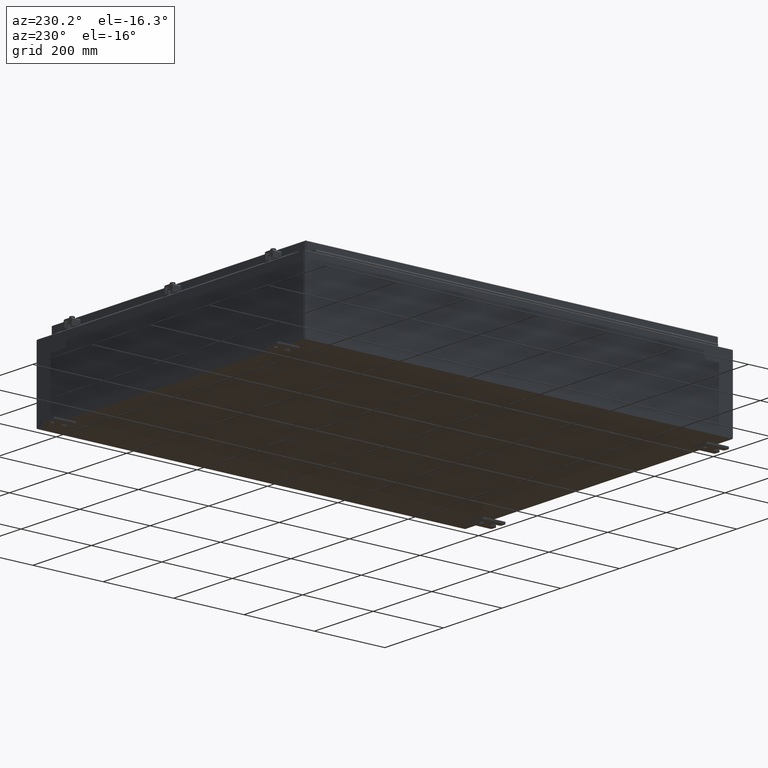
[diagram: clean part render]
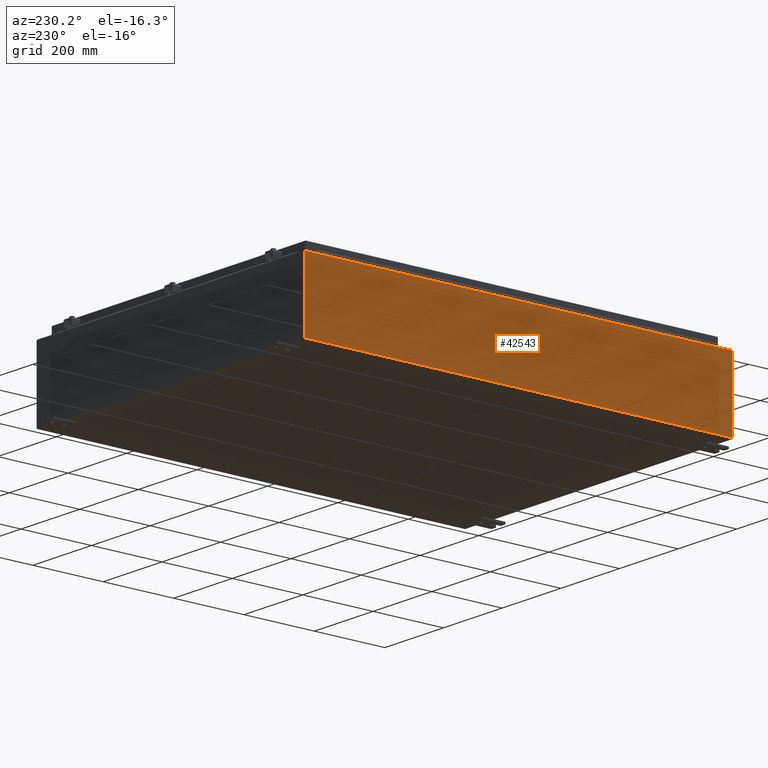
[diagram: same view with one face highlighted and labeled with its STEP entity id]
A machine part, auxiliary view. The second image highlights one B-rep face of the part: STEP entity #42543.
In plain terms, the highlighted planar face has unit normal (1, 0, 0).
Its self-contained STEP definition (entity closure, byte-faithful):
#870 = LINE ( 'NONE', #15512, #21761 ) ;
#917 = CARTESIAN_POINT ( 'NONE',  ( -18.00000000000000400, 23.92529999999998900, 0.01299999999999983600 ) ) ;
#1515 = VERTEX_POINT ( 'NONE', #42376 ) ;
#2598 = VECTOR ( 'NONE', #2730, 39.37007874015748100 ) ;
#2617 = CARTESIAN_POINT ( 'NONE',  ( -18.00000000000000400, -23.92529999999999600, -6.478858477053725400E-014 ) ) ;
#2691 = PLANE ( 'NONE',  #33537 ) ;
#2714 = EDGE_LOOP ( 'NONE', ( #2776, #31165, #51039, #39749 ) ) ;
#2730 = DIRECTION ( 'NONE',  ( -3.584876173029202900E-015, 0.0000000000000000000, 1.000000000000000000 ) ) ;
#2776 = ORIENTED_EDGE ( 'NONE', *, *, #42484, .T. ) ;
#5143 = EDGE_CURVE ( 'NONE', #44170, #44778, #51412, .T. ) ;
#8672 = EDGE_CURVE ( 'NONE', #44170, #39007, #34545, .T. ) ;
#15265 = DIRECTION ( 'NONE',  ( 3.584876173029202900E-015, 0.0000000000000000000, -1.000000000000000000 ) ) ;
#15512 = CARTESIAN_POINT ( 'NONE',  ( -18.00000000000000400, 23.92529999999998900, -6.478858477053725400E-014 ) ) ;
#19265 = CARTESIAN_POINT ( 'NONE',  ( -18.00000000000000400, 0.0000000000000000000, -6.478858477053725400E-014 ) ) ;
#19718 = DIRECTION ( 'NONE',  ( 3.584876173029202900E-015, 0.0000000000000000000, -1.000000000000000000 ) ) ;
#21761 = VECTOR ( 'NONE', #19718, 39.37007874015748100 ) ;
#27288 = DIRECTION ( 'NONE',  ( 0.0000000000000000000, 1.000000000000000000, 0.0000000000000000000 ) ) ;
#29270 = VECTOR ( 'NONE', #49249, 39.37007874015748100 ) ;
#31165 = ORIENTED_EDGE ( 'NONE', *, *, #47039, .T. ) ;
#32651 = VECTOR ( 'NONE', #27288, 39.37007874015748100 ) ;
#33537 = AXIS2_PLACEMENT_3D ( 'NONE', #19265, #40216, #15265 ) ;
#34545 = LINE ( 'NONE', #2617, #2598 ) ;
#39007 = VERTEX_POINT ( 'NONE', #47351 ) ;
#39749 = ORIENTED_EDGE ( 'NONE', *, *, #8672, .T. ) ;
#40216 = DIRECTION ( 'NONE',  ( 1.000000000000000000, 0.0000000000000000000, 3.584876173029202900E-015 ) ) ;
#41460 = CARTESIAN_POINT ( 'NONE',  ( -18.00000000000000400, 23.92529999999998900, 0.01299999999999984700 ) ) ;
#42170 = CARTESIAN_POINT ( 'NONE',  ( -18.00000000000000400, -23.92529999999998600, 0.01299999999999984700 ) ) ;
#42376 = CARTESIAN_POINT ( 'NONE',  ( -18.00000000000003200, 23.92529999999998900, 7.837599999999999200 ) ) ;
#42484 = EDGE_CURVE ( 'NONE', #39007, #1515, #43722, .T. ) ;
#42543 = ADVANCED_FACE ( 'NONE', ( #52174 ), #2691, .F. ) ;
#43722 = LINE ( 'NONE', #52204, #32651 ) ;
#44170 = VERTEX_POINT ( 'NONE', #42170 ) ;
#44778 = VERTEX_POINT ( 'NONE', #917 ) ;
#47039 = EDGE_CURVE ( 'NONE', #1515, #44778, #870, .T. ) ;
#47351 = CARTESIAN_POINT ( 'NONE',  ( -18.00000000000003200, -23.92529999999998600, 7.837599999999999200 ) ) ;
#49249 = DIRECTION ( 'NONE',  ( -0.0000000000000000000, 1.000000000000000000, -0.0000000000000000000 ) ) ;
#51039 = ORIENTED_EDGE ( 'NONE', *, *, #5143, .F. ) ;
#51412 = LINE ( 'NONE', #41460, #29270 ) ;
#52174 = FACE_OUTER_BOUND ( 'NONE', #2714, .T. ) ;
#52204 = CARTESIAN_POINT ( 'NONE',  ( -18.00000000000003200, -23.92529999999998900, 7.837599999999999200 ) ) ;